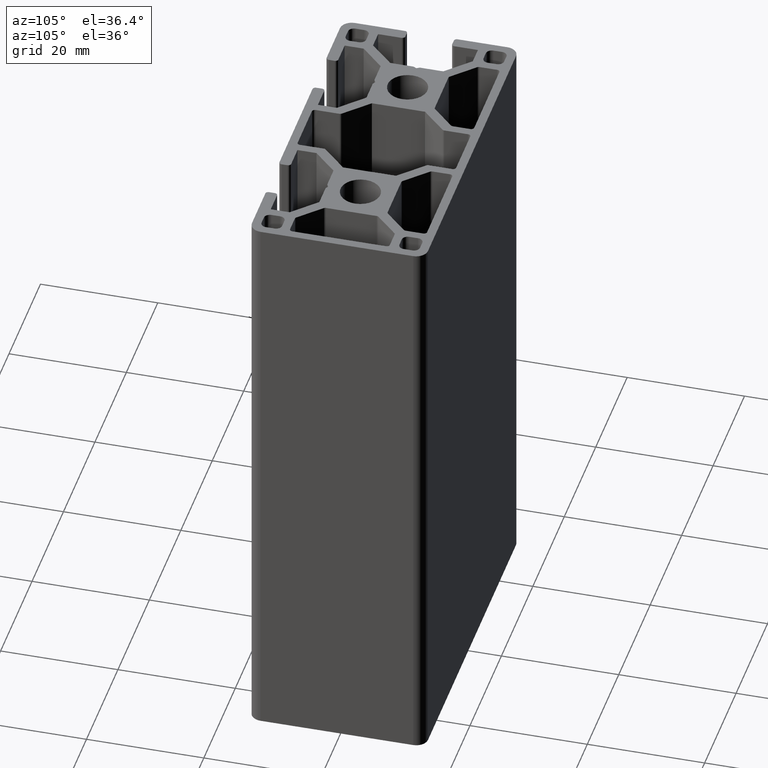
[diagram: clean part render]
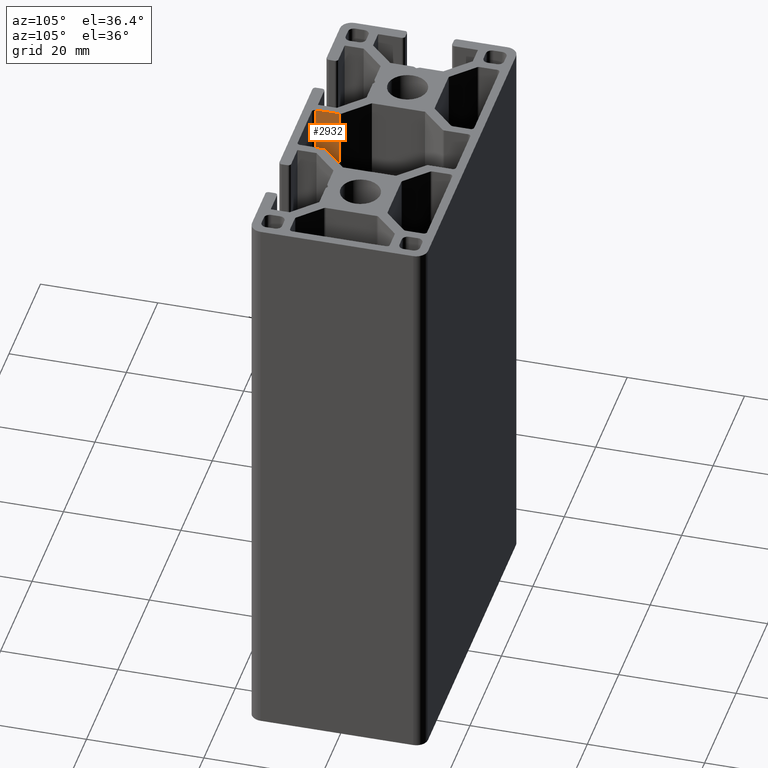
[diagram: same view with one face highlighted and labeled with its STEP entity id]
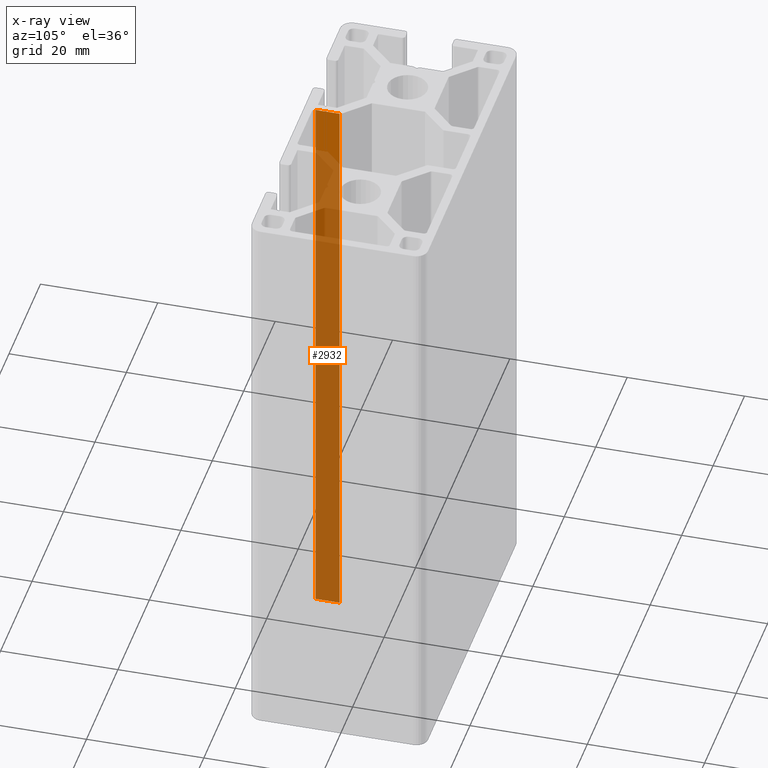
[diagram: x-ray of the same camera — body ghosted, the highlighted face saturated]
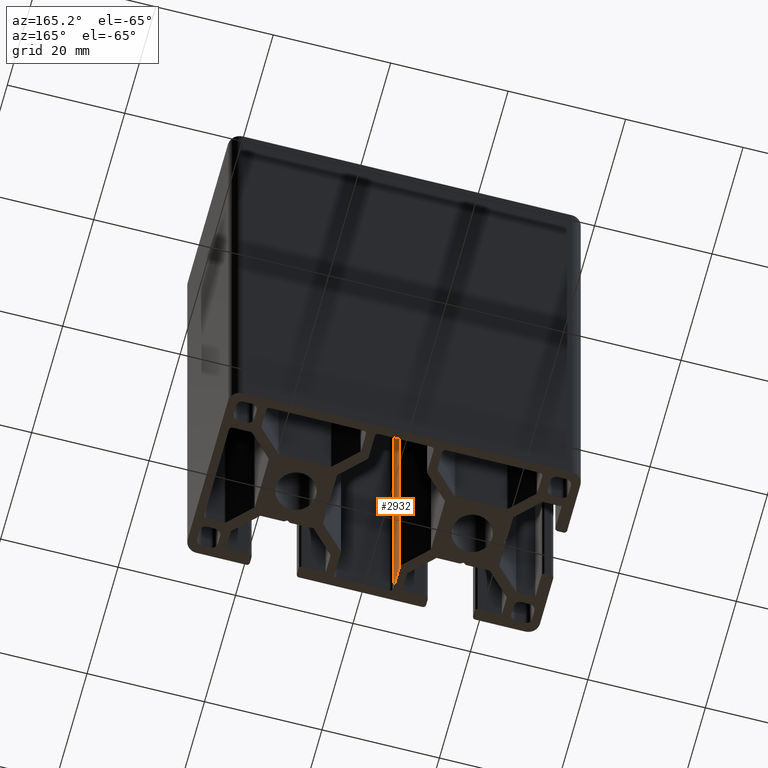
[diagram: same view with one face highlighted and labeled with its STEP entity id]
A machine part, auxiliary view. The second image highlights one B-rep face of the part: STEP entity #2932.
The next image is the same camera in x-ray: the body ghosted, the highlighted face saturated — about 91% of this face is hidden behind the body in this view.
A second angle (auxiliary view) of the same face is appended — the face is thin or edge-on in the first view.
In plain terms, the highlighted planar face has unit normal (-1, 0, 0).
Its self-contained STEP definition (entity closure, byte-faithful):
#234=FACE_OUTER_BOUND('',#385,.T.);
#385=EDGE_LOOP('',(#2002,#2003,#2004,#2005));
#574=LINE('',#4313,#899);
#575=LINE('',#4316,#900);
#576=LINE('',#4318,#901);
#577=LINE('',#4319,#902);
#899=VECTOR('',#3444,100.);
#900=VECTOR('',#3447,4.06568686925198);
#901=VECTOR('',#3448,4.06568686925198);
#902=VECTOR('',#3449,100.);
#1225=VERTEX_POINT('',#4309);
#1226=VERTEX_POINT('',#4311);
#1227=VERTEX_POINT('',#4315);
#1228=VERTEX_POINT('',#4317);
#1540=EDGE_CURVE('',#1226,#1225,#574,.T.);
#1541=EDGE_CURVE('',#1225,#1227,#575,.T.);
#1542=EDGE_CURVE('',#1228,#1226,#576,.T.);
#1543=EDGE_CURVE('',#1228,#1227,#577,.T.);
#2002=ORIENTED_EDGE('',*,*,#1541,.F.);
#2003=ORIENTED_EDGE('',*,*,#1540,.F.);
#2004=ORIENTED_EDGE('',*,*,#1542,.F.);
#2005=ORIENTED_EDGE('',*,*,#1543,.T.);
#2832=PLANE('',#3103);
#2932=ADVANCED_FACE('',(#234),#2832,.F.);
#3103=AXIS2_PLACEMENT_3D('',#4314,#3445,#3446);
#3444=DIRECTION('',(0.,0.,1.));
#3445=DIRECTION('center_axis',(-1.,0.,0.));
#3446=DIRECTION('ref_axis',(0.,-1.,0.));
#3447=DIRECTION('',(0.,1.,0.));
#3448=DIRECTION('',(0.,-1.,0.));
#3449=DIRECTION('',(0.,0.,1.));
#4309=CARTESIAN_POINT('',(-5.00000396999961,-12.9999977629999,100.));
#4311=CARTESIAN_POINT('',(-5.00000396999961,-12.9999977629999,0.));
#4313=CARTESIAN_POINT('',(-5.00000396999961,-12.9999977629999,0.));
#4314=CARTESIAN_POINT('Origin',(-5.00000396999961,-8.9343108937479,0.));
#4315=CARTESIAN_POINT('',(-5.00000396999961,-8.9343108937479,100.));
#4316=CARTESIAN_POINT('',(-5.00000396999961,-4.46715378187397,100.));
#4317=CARTESIAN_POINT('',(-5.00000396999961,-8.9343108937479,0.));
#4318=CARTESIAN_POINT('',(-5.00000396999961,-4.46715378187397,0.));
#4319=CARTESIAN_POINT('',(-5.00000396999961,-8.9343108937479,0.));